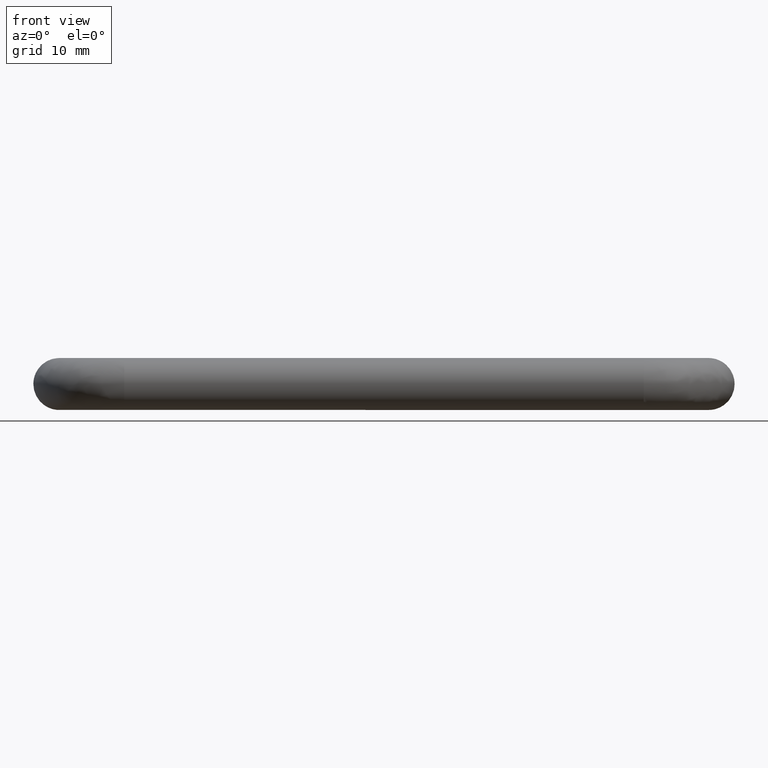
[diagram: clean part render]
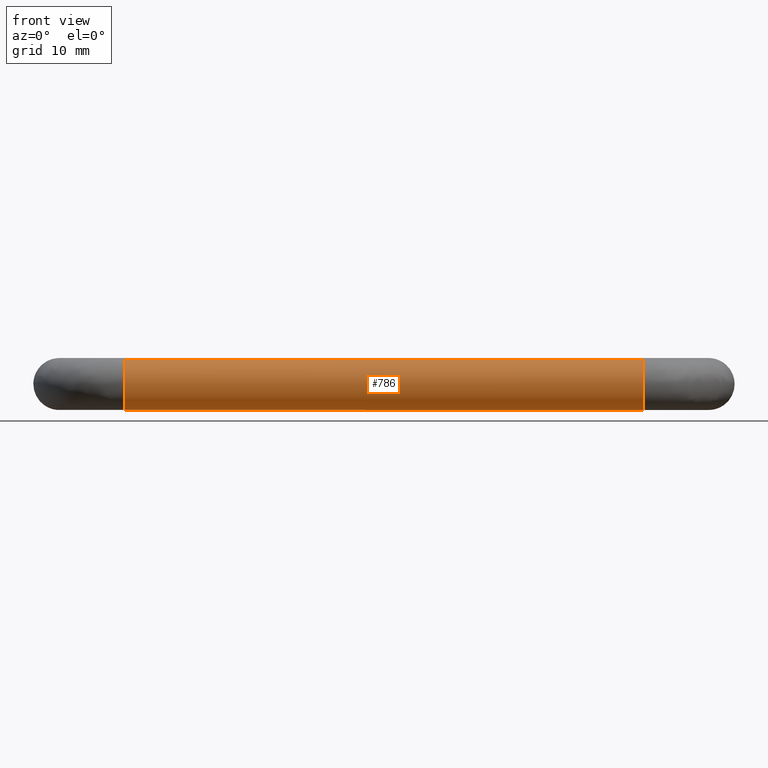
[diagram: same view with one face highlighted and labeled with its STEP entity id]
A machine part, front view. The second image highlights one B-rep face of the part: STEP entity #786.
In plain terms, the highlighted face is a freeform B-spline surface patch.
Its self-contained STEP definition (entity closure, byte-faithful):
#620=CARTESIAN_POINT('',(7.999999999193853,-28.486157657633822,3.713668727371406));
#621=CARTESIAN_POINT('',(7.999999999193853,-29.164039411833976,3.442390044771222));
#622=CARTESIAN_POINT('',(7.999999999193853,-29.702360830462641,2.949109347240495));
#623=CARTESIAN_POINT('',(7.999999999193853,-32.651470177703125,0.246748516777854));
#624=CARTESIAN_POINT('',(7.999999999193853,-29.949109347240491,-2.702360830462641));
#625=CARTESIAN_POINT('',(7.999999999193853,-27.246748516777860,-5.651470177703135));
#626=CARTESIAN_POINT('',(7.999999999193853,-24.297639169537359,-2.949109347240495));
#627=CARTESIAN_POINT('',(7.999999999193853,-21.348529822296872,-0.246748516777854));
#628=CARTESIAN_POINT('',(7.999999999193853,-24.050890652759509,2.702360830462641));
#629=CARTESIAN_POINT('',(92.050000000972332,-28.486157657633807,3.713668727371406));
#630=CARTESIAN_POINT('',(92.050000000972318,-29.164039411833965,3.442390044771222));
#631=CARTESIAN_POINT('',(92.050000000972318,-29.702360830462631,2.949109347240495));
#632=CARTESIAN_POINT('',(92.050000000972332,-32.651470177703125,0.246748516777854));
#633=CARTESIAN_POINT('',(92.050000000972318,-29.949109347240480,-2.702360830462641));
#634=CARTESIAN_POINT('',(92.050000000972332,-27.246748516777846,-5.651470177703135));
#635=CARTESIAN_POINT('',(92.050000000972318,-24.297639169537351,-2.949109347240495));
#636=CARTESIAN_POINT('',(92.050000000972332,-21.348529822296857,-0.246748516777854));
#637=CARTESIAN_POINT('',(92.050000000972318,-24.050890652759499,2.702360830462641));
#645=(BOUNDED_SURFACE()B_SPLINE_SURFACE(2,1,((#620,#629),(#621,#630),(#622,#631),(#623,#632),(#624,#633),(#625,#634),(#626,#635),(#627,#636),(#628,#637)),.UNSPECIFIED.,.F.,.F.,.U.)B_SPLINE_SURFACE_WITH_KNOTS((3,2,2,2,3),(2,2),(0.0,1.590580079512686,8.217997077482210,14.845414075451730,21.472831073421251),(0.0,84.050000001778471),.UNSPECIFIED.)GEOMETRIC_REPRESENTATION_ITEM()RATIONAL_B_SPLINE_SURFACE(((0.893152553776853,0.893152553776853),(0.929705627484771,0.929705627484771),(1.0,1.0),(0.707106781186548,0.707106781186548),(1.0,1.0),(0.707106781186548,0.707106781186548),(1.0,1.0),(0.707106781186548,0.707106781186548),(1.0,1.0)))REPRESENTATION_ITEM('')SURFACE());
#646=CARTESIAN_POINT('',(90.000000000598845,-28.486157657465750,3.713668726938179));
#647=VERTEX_POINT('',#646);
#648=CARTESIAN_POINT('',(90.0,-31.0,0.0));
#649=VERTEX_POINT('',#648);
#650=CARTESIAN_POINT('',(90.000000000598845,-28.486157657465743,3.713668726938179));
#651=CARTESIAN_POINT('',(89.999999999999986,-31.000000000000004,2.707664603616569));
#652=CARTESIAN_POINT('',(90.0,-31.0,0.0));
#660=(BOUNDED_CURVE()B_SPLINE_CURVE(2,(#650,#651,#652),.UNSPECIFIED.,.F.,.U.)B_SPLINE_CURVE_WITH_KNOTS((3,3),(0.813083199559747,1.0),.UNSPECIFIED.)CURVE()GEOMETRIC_REPRESENTATION_ITEM()RATIONAL_B_SPLINE_CURVE((0.889484969979009,0.781013346674970,1.0))REPRESENTATION_ITEM(''));
#661=EDGE_CURVE('',#647,#649,#660,.T.);
#662=ORIENTED_EDGE('',*,*,#661,.F.);
#663=CARTESIAN_POINT('',(10.0,-28.486157657653290,3.713668727363614));
#664=VERTEX_POINT('',#663);
#665=CARTESIAN_POINT('',(10.0,-28.486157657653290,3.713668727363614));
#666=CARTESIAN_POINT('',(90.000000000598845,-28.486157657465750,3.713668726938179));
#667=QUASI_UNIFORM_CURVE('',1,(#665,#666),.UNSPECIFIED.,.F.,.U.);
#668=EDGE_CURVE('',#664,#647,#667,.T.);
#669=ORIENTED_EDGE('',*,*,#668,.F.);
#670=CARTESIAN_POINT('',(10.0,-31.0,0.0));
#671=VERTEX_POINT('',#670);
#672=CARTESIAN_POINT('',(10.0,-28.486157657653294,3.713668727363613));
#673=CARTESIAN_POINT('',(10.0,-31.000000000000004,2.707664605417969));
#674=CARTESIAN_POINT('',(10.0,-31.0,0.0));
#682=(BOUNDED_CURVE()B_SPLINE_CURVE(2,(#672,#673,#674),.UNSPECIFIED.,.F.,.U.)B_SPLINE_CURVE_WITH_KNOTS((3,3),(0.813083199462624,1.0),.UNSPECIFIED.)CURVE()GEOMETRIC_REPRESENTATION_ITEM()RATIONAL_B_SPLINE_CURVE((0.889484970091733,0.781013346561183,1.0))REPRESENTATION_ITEM(''));
#683=EDGE_CURVE('',#664,#671,#682,.T.);
#684=ORIENTED_EDGE('',*,*,#683,.T.);
#685=CARTESIAN_POINT('',(9.999999999236174,-27.278933009532668,-3.990262695135878));
#686=VERTEX_POINT('',#685);
#687=CARTESIAN_POINT('',(10.0,-31.0,0.0));
#688=CARTESIAN_POINT('',(9.999999999999998,-31.000000000000007,-3.730147383011171));
#689=CARTESIAN_POINT('',(9.999999999236174,-27.278933009532668,-3.990262695135878));
#697=(BOUNDED_CURVE()B_SPLINE_CURVE(2,(#687,#688,#689),.UNSPECIFIED.,.F.,.U.)B_SPLINE_CURVE_WITH_KNOTS((3,3),(0.0,0.237833686256628),.UNSPECIFIED.)CURVE()GEOMETRIC_REPRESENTATION_ITEM()RATIONAL_B_SPLINE_CURVE((1.0,0.721360504360110,0.972879875798001))REPRESENTATION_ITEM(''));
#698=EDGE_CURVE('',#671,#686,#697,.T.);
#699=ORIENTED_EDGE('',*,*,#698,.T.);
#700=CARTESIAN_POINT('',(10.0,-23.0,0.0));
#701=VERTEX_POINT('',#700);
#702=CARTESIAN_POINT('',(9.999999999236174,-27.278933009532668,-3.990262695135878));
#703=CARTESIAN_POINT('',(10.0,-27.139636466741571,-4.000000000000000));
#704=CARTESIAN_POINT('',(10.0,-27.0,-4.0));
#705=CARTESIAN_POINT('',(10.000000000000002,-22.999999999999993,-4.000000000000000));
#706=CARTESIAN_POINT('',(10.0,-23.0,0.0));
#714=(BOUNDED_CURVE()B_SPLINE_CURVE(2,(#702,#703,#704,#705,#706),.UNSPECIFIED.,.F.,.U.)B_SPLINE_CURVE_WITH_KNOTS((3,2,3),(0.237833686256628,0.250000000000000,0.500000000000000),.UNSPECIFIED.)CURVE()GEOMETRIC_REPRESENTATION_ITEM()RATIONAL_B_SPLINE_CURVE((0.972879875798001,0.985746276826437,1.0,0.707106781186548,1.0))REPRESENTATION_ITEM(''));
#715=EDGE_CURVE('',#686,#701,#714,.T.);
#716=ORIENTED_EDGE('',*,*,#715,.T.);
#717=CARTESIAN_POINT('',(9.999999999858698,-24.050890421757479,2.702360578255077));
#718=VERTEX_POINT('',#717);
#719=CARTESIAN_POINT('',(10.0,-23.0,0.0));
#720=CARTESIAN_POINT('',(10.000000000000002,-23.000000000000007,1.555514533598750));
#721=CARTESIAN_POINT('',(9.999999999858700,-24.050890421757479,2.702360578255077));
#729=(BOUNDED_CURVE()B_SPLINE_CURVE(2,(#719,#720,#721),.UNSPECIFIED.,.F.,.U.)B_SPLINE_CURVE_WITH_KNOTS((3,3),(0.500000000000000,0.618415183263736),.UNSPECIFIED.)CURVE()GEOMETRIC_REPRESENTATION_ITEM()RATIONAL_B_SPLINE_CURVE((1.0,0.861267983269998,0.853959784025043))REPRESENTATION_ITEM(''));
#730=EDGE_CURVE('',#701,#718,#729,.T.);
#731=ORIENTED_EDGE('',*,*,#730,.T.);
#732=CARTESIAN_POINT('',(90.0,-24.050890144235758,2.702360275506146));
#733=VERTEX_POINT('',#732);
#734=CARTESIAN_POINT('',(9.999999999858698,-24.050890421757479,2.702360578255077));
#735=CARTESIAN_POINT('',(90.0,-24.050890144235758,2.702360275506146));
#736=QUASI_UNIFORM_CURVE('',1,(#734,#735),.UNSPECIFIED.,.F.,.U.);
#737=EDGE_CURVE('',#718,#733,#736,.T.);
#738=ORIENTED_EDGE('',*,*,#737,.T.);
#739=CARTESIAN_POINT('',(90.0,-23.0,0.0));
#740=VERTEX_POINT('',#739);
#741=CARTESIAN_POINT('',(90.0,-23.0,0.0));
#742=CARTESIAN_POINT('',(89.999999999999986,-22.999999999999993,1.555514060871604));
#743=CARTESIAN_POINT('',(90.0,-24.050890144235751,2.702360275506146));
#751=(BOUNDED_CURVE()B_SPLINE_CURVE(2,(#741,#742,#743),.UNSPECIFIED.,.F.,.U.)B_SPLINE_CURVE_WITH_KNOTS((3,3),(0.500000000000000,0.618415152269411),.UNSPECIFIED.)CURVE()GEOMETRIC_REPRESENTATION_ITEM()RATIONAL_B_SPLINE_CURVE((1.0,0.861268019582109,0.853959787850790))REPRESENTATION_ITEM(''));
#752=EDGE_CURVE('',#740,#733,#751,.T.);
#753=ORIENTED_EDGE('',*,*,#752,.F.);
#754=CARTESIAN_POINT('',(89.999988457094148,-26.899482878654041,-3.998736839091613));
#755=VERTEX_POINT('',#754);
#756=CARTESIAN_POINT('',(89.999988457094148,-26.899482878654041,-3.998736839091613));
#757=CARTESIAN_POINT('',(89.999994228547067,-23.000000000000018,-3.900714686229152));
#758=CARTESIAN_POINT('',(90.0,-23.0,0.0));
#766=(BOUNDED_CURVE()B_SPLINE_CURVE(2,(#756,#757,#758),.UNSPECIFIED.,.F.,.U.)B_SPLINE_CURVE_WITH_KNOTS((3,3),(0.254419965559188,0.500000000000000),.UNSPECIFIED.)CURVE()GEOMETRIC_REPRESENTATION_ITEM()RATIONAL_B_SPLINE_CURVE((0.989826480159624,0.712285092945249,1.0))REPRESENTATION_ITEM(''));
#767=EDGE_CURVE('',#755,#740,#766,.T.);
#768=ORIENTED_EDGE('',*,*,#767,.F.);
#769=CARTESIAN_POINT('',(90.0,-31.0,0.0));
#770=CARTESIAN_POINT('',(89.999994371802188,-31.000000000000021,-3.999999999999516));
#771=CARTESIAN_POINT('',(89.999988600349283,-27.000000000000028,-3.999999999999020));
#772=CARTESIAN_POINT('',(89.999988527821600,-26.949733502492712,-3.999999999999013));
#773=CARTESIAN_POINT('',(89.999988457094148,-26.899482878654045,-3.998736839091613));
#781=(BOUNDED_CURVE()B_SPLINE_CURVE(2,(#769,#770,#771,#772,#773),.UNSPECIFIED.,.F.,.U.)B_SPLINE_CURVE_WITH_KNOTS((3,2,3),(0.0,0.250000000000000,0.254419965559188),.UNSPECIFIED.)CURVE()GEOMETRIC_REPRESENTATION_ITEM()RATIONAL_B_SPLINE_CURVE((1.0,0.707106781186548,1.0,0.994821688241299,0.989826480159624))REPRESENTATION_ITEM(''));
#782=EDGE_CURVE('',#649,#755,#781,.T.);
#783=ORIENTED_EDGE('',*,*,#782,.F.);
#784=EDGE_LOOP('',(#662,#669,#684,#699,#716,#731,#738,#753,#768,#783));
#785=FACE_OUTER_BOUND('',#784,.T.);
#786=ADVANCED_FACE('',(#785),#645,.T.);